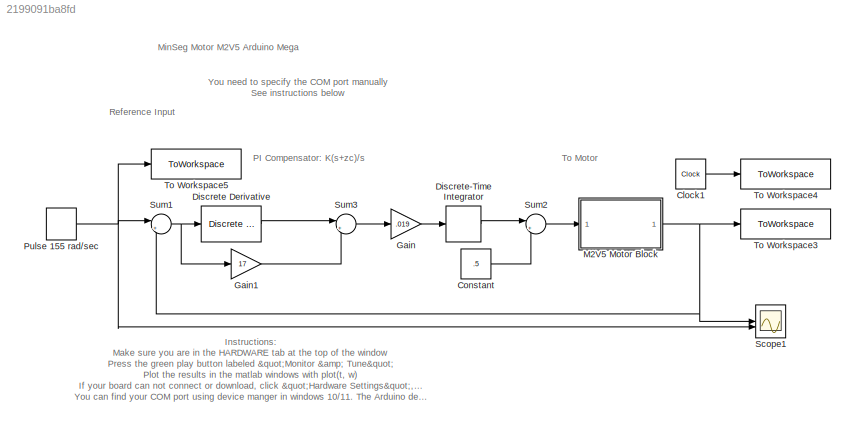
MODEL slx_2199091ba8fd
KIND model
CONFIG AbsTol = auto
CONFIG EnableMultiTasking = on
CONFIG FixedStep = .004
CONFIG MaxStep = auto
CONFIG MinStep = auto
CONFIG RelTol = 1e-3
CONFIG SampleTimeConstraint = Unconstrained
CONFIG SolverName = FixedStepDiscrete
CONFIG StartTime = 0.0
CONFIG StopTime = inf
BLOCK [Clock] Clock1
BLOCK [Constant] Constant
  Value = .5
BLOCK [Reference] Discrete Derivative  REF=simulink/Discrete/Discrete Derivative
  SourceBlock = simulink/Discrete/Discrete Derivative
  SourceType = Discrete Derivative
BLOCK [DiscreteIntegrator] Discrete-Time Integrator
  ICPrevOutput = DiscIntNeverNeededParam
  ICPrevScaledInput = DiscIntNeverNeededParam
  InitialConditionSetting = Auto
  SampleTime = -1
BLOCK [Gain] Gain
  Gain = .019
BLOCK [Gain] Gain1
  Gain = 17
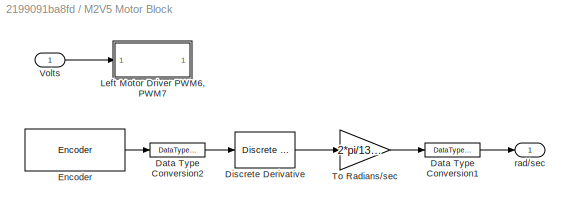
BLOCK [SubSystem] M2V5 Motor Block
BLOCK [DataTypeConversion] M2V5 Motor Block/Data Type Conversion1
  OutDataTypeStr = single
  RndMeth = Floor
  SaturateOnIntegerOverflow = off
BLOCK [DataTypeConversion] M2V5 Motor Block/Data Type Conversion2
  OutDataTypeStr = double
  RndMeth = Floor
  SaturateOnIntegerOverflow = off
BLOCK [Reference] M2V5 Motor Block/Discrete Derivative  REF=simulink/Discrete/Discrete Derivative
  SourceBlock = simulink/Discrete/Discrete Derivative
  SourceType = Discrete Derivative
BLOCK [Reference] M2V5 Motor Block/Encoder  REF=arduinosensorlib/Encoder
  SourceBlock = arduinosensorlib/Encoder
  SourceType = Arduino Rotary Encoder
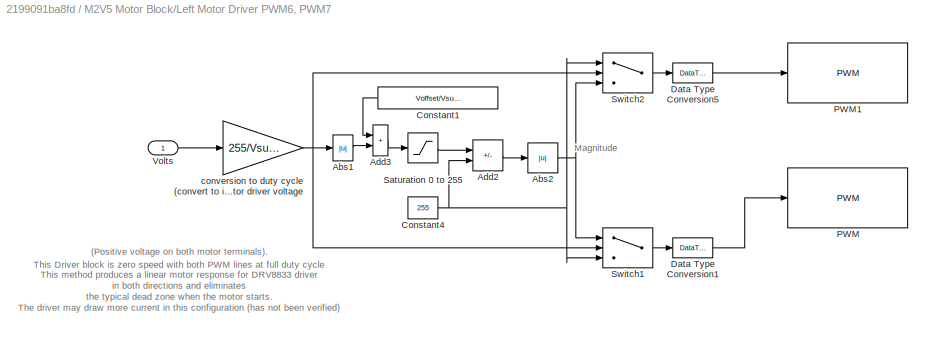
BLOCK [SubSystem] M2V5 Motor Block/Left Motor Driver PWM6, PWM7
BLOCK [Abs] M2V5 Motor Block/Left Motor Driver PWM6, PWM7/Abs1
  SaturateOnIntegerOverflow = off
BLOCK [Abs] M2V5 Motor Block/Left Motor Driver PWM6, PWM7/Abs2
  SaturateOnIntegerOverflow = off
BLOCK [Sum] M2V5 Motor Block/Left Motor Driver PWM6, PWM7/Add2
  IconShape = rectangular
  Inputs = -+
BLOCK [Sum] M2V5 Motor Block/Left Motor Driver PWM6, PWM7/Add3
  IconShape = rectangular
BLOCK [Constant] M2V5 Motor Block/Left Motor Driver PWM6, PWM7/Constant1
  NameLocation = top
  Value = Voffset/Vsupply*255
BLOCK [Constant] M2V5 Motor Block/Left Motor Driver PWM6, PWM7/Constant4
  Value = 255
BLOCK [DataTypeConversion] M2V5 Motor Block/Left Motor Driver PWM6, PWM7/Data Type Conversion1
  OutDataTypeStr = uint8
  RndMeth = Floor
  SaturateOnIntegerOverflow = off
BLOCK [DataTypeConversion] M2V5 Motor Block/Left Motor Driver PWM6, PWM7/Data Type Conversion5
  OutDataTypeStr = uint8
  RndMeth = Floor
  SaturateOnIntegerOverflow = off
BLOCK [Reference] M2V5 Motor Block/Left Motor Driver PWM6, PWM7/PWM  REF=arduinolib/PWM
  SourceBlock = arduinolib/PWM
  SourceType = Arduino PWM
BLOCK [Reference] M2V5 Motor Block/Left Motor Driver PWM6, PWM7/PWM1  REF=arduinolib/PWM
  SourceBlock = arduinolib/PWM
  SourceType = Arduino PWM
BLOCK [Saturate] M2V5 Motor Block/Left Motor Driver PWM6, PWM7/Saturation 0 to 255
  LowerLimit = 0
  UpperLimit = 255
BLOCK [Switch] M2V5 Motor Block/Left Motor Driver PWM6, PWM7/Switch1
  InputSameDT = off
  SaturateOnIntegerOverflow = off
BLOCK [Switch] M2V5 Motor Block/Left Motor Driver PWM6, PWM7/Switch2
  InputSameDT = off
  SaturateOnIntegerOverflow = off
BLOCK [Inport] M2V5 Motor Block/Left Motor Driver PWM6, PWM7/Volts
BLOCK [Gain] M2V5 Motor Block/Left Motor Driver PWM6, PWM7/conversion to duty cycle (convert to int) denominator is motor driver voltage
  Gain = 255/Vsupply
  OutDataTypeStr = int16
BLOCK [Gain] M2V5 Motor Block/To Radians//sec
  Gain = 2*pi/1336
  NameLocation = top
BLOCK [Inport] M2V5 Motor Block/Volts
BLOCK [Outport] M2V5 Motor Block/rad//sec
BLOCK [DiscretePulseGenerator] Pulse 155 rad//sec
  Amplitude = 155
  Period = 4
  PulseType = Time based
  PulseWidth = 50
BLOCK [Scope] Scope1
  ActiveDisplayYMaximum = 182.68149646388963
  ActiveDisplayYMinimum = -21.604328222194336
  DataLoggingVariableName = ScopeData3
  Floating = off
  GraphicalSettings = {"Style":{"BackgroundColor":[0.12941176470588237,0.12941176470588237,0.12941176470588237],"AxesColor":[0.07058823529411765,0.07058823529411765,0.07058823529411765],"LabelsColor":[0.8509803921568627,0.8509803921568627,0.8509803921568627],"PreserveColors":false,"Visible":[true,true],"LineStyle":["-","-"],"LineWidth":[1.5,1.5],"BarWidth":[0.9,0.9],"LineColor":["auto","auto"],"LineFaceAlpha":[1,1],"Li...<+2154ch>
  MultipleDisplayCache = [{"MaxYLimMag":182.68149646388963,"MaxYLimReal":182.68149646388963,"MinYLimMag":0,"MinYLimReal":-21.604328222194336,"PlotAsMagnitudePhase":false,"ShowGrid":true,"ShowLegend":false,"Title":"%<SignalLabel>","YLabel":""}]
  NumInputPorts = 2
  ScopeFrameLocation = window
  TimeSpanOverrunAction = Scroll
  WasSavedAsWebScope = on
  WindowPosition = [1693.000000,435.000000,612.000000,842.000000,]
BLOCK [Sum] Sum1
  Inputs = |+-
BLOCK [Sum] Sum2
  Inputs = |++
BLOCK [Sum] Sum3
  Inputs = |++
BLOCK [ToWorkspace] To Workspace3
  FixptAsFi = on
  MaxDataPoints = inf
  SampleTime = -1
  Save2DSignal = 2-D array (concatenate along first dimension)
  VariableName = W
BLOCK [ToWorkspace] To Workspace4
  FixptAsFi = on
  MaxDataPoints = inf
  SampleTime = -1
  Save2DSignal = 2-D array (concatenate along first dimension)
  VariableName = t1
BLOCK [ToWorkspace] To Workspace5
  FixptAsFi = on
  MaxDataPoints = inf
  SampleTime = -1
  Save2DSignal = 2-D array (concatenate along first dimension)
  VariableName = R
ANNOTATION (root): Instructions : Make sure you are in the HARDWARE tab at the top of the window Press the green play button labeled "Monitor & Tune" Plot the results in the matlab windows with plot(t, w) If your board can not connect or download, click "Hardware Settings", "Hardware Implementation", "Target hardware resources", "Host-board connection" and "Set host COM port" to "Manually Select" set your COM port t...<+135ch>
ANNOTATION (root): PI Compensator: K(s+zc)/s
ANNOTATION (root): Reference Input
ANNOTATION (root): To Motor
ANNOTATION (root): You need to specify the COM port manually See instructions below
ANNOTATION (root): MinSeg Motor M2V5 Arduino Mega
ANNOTATION M2V5 Motor Block/Left Motor Driver PWM6, PWM7: Magnitude
ANNOTATION M2V5 Motor Block/Left Motor Driver PWM6, PWM7: This Driver block is zero speed with both PWM lines at full duty cycle (Positive voltage on both motor terminals). This method produces a linear motor response for DRV8833 driver in both directions and eliminates the typical dead zone when the motor starts. The driver may draw more current in this configuration (has not been verified) The SN754410 driver this has no effect, so the driver could alt...<+76ch>
LINE Clock1:1 -> To Workspace4:1
LINE Constant:1 -> Sum2:2
LINE Discrete Derivative:1 -> Sum3:1
LINE Discrete-Time Integrator:1 -> Sum2:1
LINE Gain1:1 -> Sum3:2
LINE Gain:1 -> Discrete-Time Integrator:1
LINE M2V5 Motor Block/Data Type Conversion1:1 -> M2V5 Motor Block/rad//sec:1
LINE M2V5 Motor Block/Data Type Conversion2:1 -> M2V5 Motor Block/Discrete Derivative:1
LINE M2V5 Motor Block/Discrete Derivative:1 -> M2V5 Motor Block/To Radians//sec:1
LINE M2V5 Motor Block/Encoder:1 -> M2V5 Motor Block/Data Type Conversion2:1
LINE M2V5 Motor Block/Left Motor Driver PWM6, PWM7/Abs1:1 -> M2V5 Motor Block/Left Motor Driver PWM6, PWM7/Add3:2
NET M2V5 Motor Block/Left Motor Driver PWM6, PWM7/Abs2:1 -> M2V5 Motor Block/Left Motor Driver PWM6, PWM7/Switch1:1, M2V5 Motor Block/Left Motor Driver PWM6, PWM7/Switch2:3
LINE M2V5 Motor Block/Left Motor Driver PWM6, PWM7/Add2:1 -> M2V5 Motor Block/Left Motor Driver PWM6, PWM7/Abs2:1
LINE M2V5 Motor Block/Left Motor Driver PWM6, PWM7/Add3:1 -> M2V5 Motor Block/Left Motor Driver PWM6, PWM7/Saturation 0 to 255:1
LINE M2V5 Motor Block/Left Motor Driver PWM6, PWM7/Constant1:1 -> M2V5 Motor Block/Left Motor Driver PWM6, PWM7/Add3:1
NET M2V5 Motor Block/Left Motor Driver PWM6, PWM7/Constant4:1 -> M2V5 Motor Block/Left Motor Driver PWM6, PWM7/Add2:2, M2V5 Motor Block/Left Motor Driver PWM6, PWM7/Switch1:3, M2V5 Motor Block/Left Motor Driver PWM6, PWM7/Switch2:1
LINE M2V5 Motor Block/Left Motor Driver PWM6, PWM7/Data Type Conversion1:1 -> M2V5 Motor Block/Left Motor Driver PWM6, PWM7/PWM:1
LINE M2V5 Motor Block/Left Motor Driver PWM6, PWM7/Data Type Conversion5:1 -> M2V5 Motor Block/Left Motor Driver PWM6, PWM7/PWM1:1
LINE M2V5 Motor Block/Left Motor Driver PWM6, PWM7/Saturation 0 to 255:1 -> M2V5 Motor Block/Left Motor Driver PWM6, PWM7/Add2:1
LINE M2V5 Motor Block/Left Motor Driver PWM6, PWM7/Switch1:1 -> M2V5 Motor Block/Left Motor Driver PWM6, PWM7/Data Type Conversion1:1
LINE M2V5 Motor Block/Left Motor Driver PWM6, PWM7/Switch2:1 -> M2V5 Motor Block/Left Motor Driver PWM6, PWM7/Data Type Conversion5:1
LINE M2V5 Motor Block/Left Motor Driver PWM6, PWM7/Volts:1 -> M2V5 Motor Block/Left Motor Driver PWM6, PWM7/conversion to duty cycle (convert to int) denominator is motor driver voltage:1
NET M2V5 Motor Block/Left Motor Driver PWM6, PWM7/conversion to duty cycle (convert to int) denominator is motor driver voltage:1 -> M2V5 Motor Block/Left Motor Driver PWM6, PWM7/Abs1:1, M2V5 Motor Block/Left Motor Driver PWM6, PWM7/Switch1:2, M2V5 Motor Block/Left Motor Driver PWM6, PWM7/Switch2:2
LINE M2V5 Motor Block/To Radians//sec:1 -> M2V5 Motor Block/Data Type Conversion1:1
LINE M2V5 Motor Block/Volts:1 -> M2V5 Motor Block/Left Motor Driver PWM6, PWM7:1
NET M2V5 Motor Block:1 -> Scope1:1, Sum1:2, To Workspace3:1
NET Pulse 155 rad//sec:1 -> Scope1:2, Sum1:1, To Workspace5:1
NET Sum1:1 -> Discrete Derivative:1, Gain1:1
LINE Sum2:1 -> M2V5 Motor Block:1
LINE Sum3:1 -> Gain:1
note: NET lines group one-source signal fan-out (src -> all destinations, sorted); 1:1 wires keep LINE
